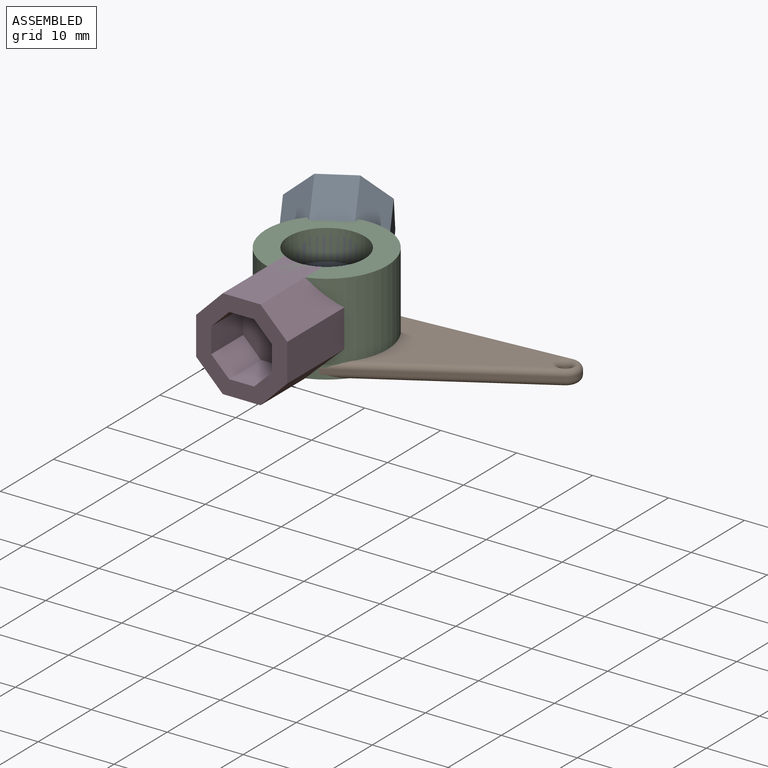
[diagram: assembled view]
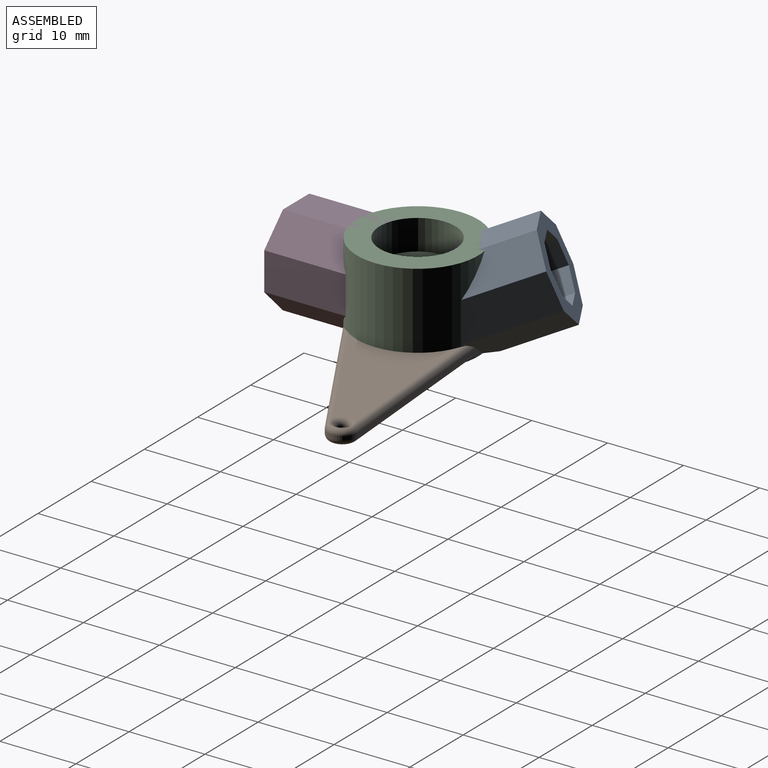
[diagram: assembled view, second angle]
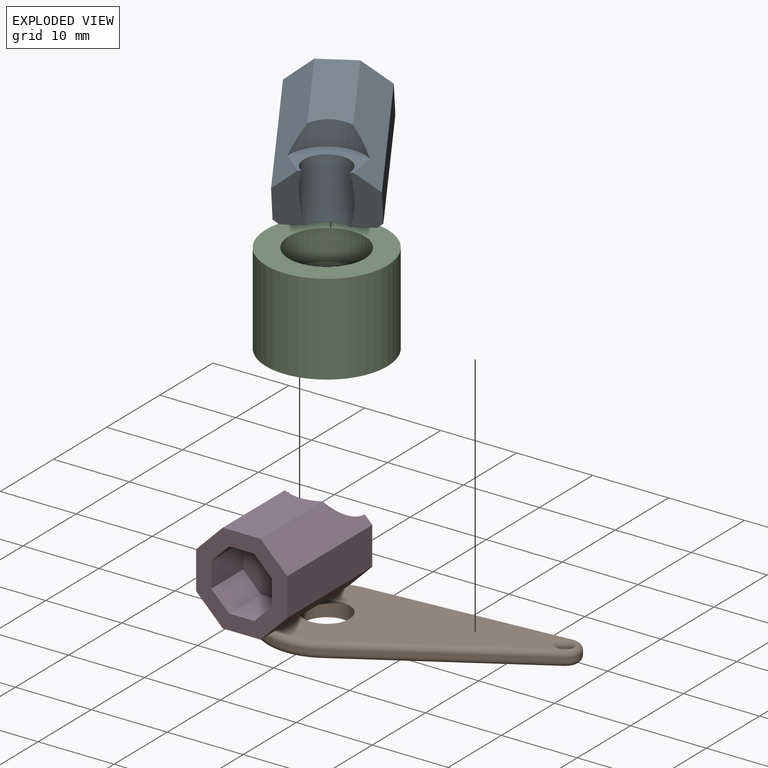
[diagram: exploded view]
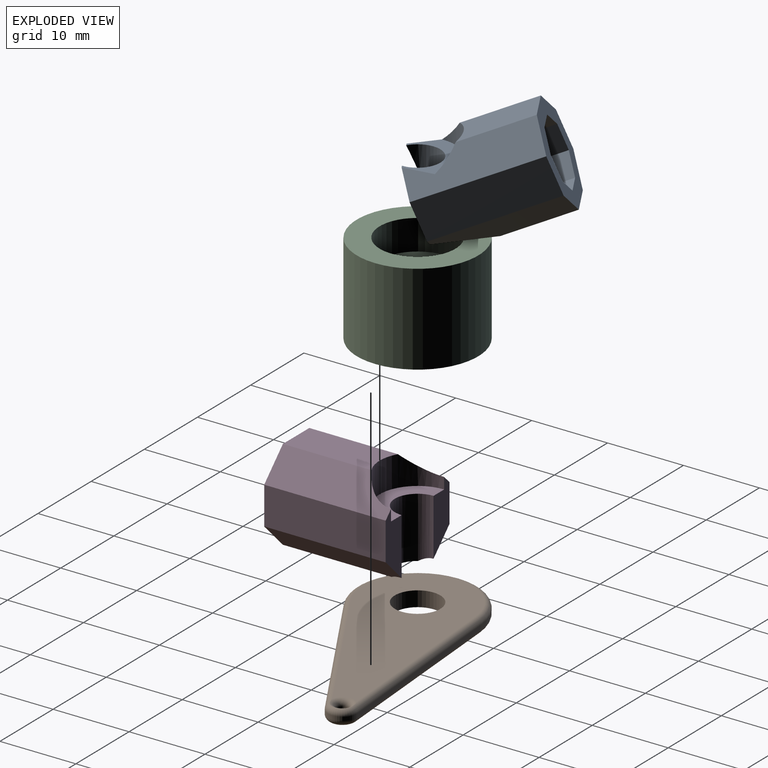
[diagram: exploded view, second angle]
ASSEMBLY  parts=4 mates=3
PART A: 24 faces, bbox 12x19.1x14.6 mm
  f0: plane 8x3.61mm, normal (0,0.93,-0.38), area 22.7mm2, adj f1,f8,f17,f20,f22,f23
  f1: plane 15.93x9.32mm, normal (0.71,0.27,0.65), area 68.5mm2, adj f0,f4,f17,f18,f21,f22
  f2: plane 15.93x9.32mm, normal (-0.71,0.27,0.65), area 68.5mm2, adj f3,f4,f5,f18,f21,f22
  f3: plane 8x3.61mm, normal (0,0.93,-0.38), area 22.7mm2, adj f2,f5,f6,f20,f22,f23
  f4: plane 8.79x4.97mm, normal (0,0.38,0.93), area 44.8mm2, adj f1,f2,f18,f21
  f5: plane 16.69x10.67mm, normal (-1,0,0), area 79.5mm2, adj f2,f3,f6,f18
  f6: plane 16.14x6.74mm, normal (-0.71,-0.27,-0.65), area 66.1mm2, adj f3,f5,f7,f18,f23
  f7: plane 8.5x4.97mm, normal (0,-0.38,-0.93), area 45.6mm2, adj f6,f8,f18,f23
  f8: plane 16.14x6.74mm, normal (0.71,-0.27,-0.65), area 66.1mm2, adj f0,f7,f17,f18,f23
  f9: plane 5.55x3.31mm, normal (0,-0.38,-0.93), area 19.9mm2, adj f10,f16,f18,f19
  f10: plane 6.44x4.44mm, normal (-0.71,-0.27,-0.65), area 19.9mm2, adj f9,f11,f18,f19
  f11: plane 6.81x5.34mm, normal (-1,0,0), area 19.9mm2, adj f10,f12,f18,f19
  f12: plane 6.44x4.44mm, normal (-0.71,0.27,0.65), area 19.9mm2, adj f11,f13,f18,f19
  f13: plane 5.55x3.31mm, normal (0,0.38,0.93), area 19.9mm2, adj f12,f14,f18,f19
  f14: plane 6.44x4.44mm, normal (0.71,0.27,0.65), area 19.9mm2, adj f13,f15,f18,f19
  f15: plane 6.81x5.34mm, normal (1,0,0), area 19.9mm2, adj f14,f16,f18,f19
  f16: plane 6.44x4.44mm, normal (0.71,-0.27,-0.65), area 19.9mm2, adj f9,f15,f18,f19
  f17: plane 16.69x10.67mm, normal (1,0,0), area 79.5mm2, adj f0,f1,f8,f18
  f18: plane 12x11.1mm, normal (0,-0.93,0.38), area 66.3mm2, adj f1,f2,f4,f5,f6,f7,f8,f9
  f19: plane 8x7.4mm, normal (0,-0.93,0.38), area 53mm2, adj f9,f10,f11,f12,f13,f14,f15,f16
  f20: cylinder r=3mm len=8mm, axis (0,0,1), area 72.5mm2, adj f0,f3,f22,f23
  f21: cylinder r=5mm len=8.92mm, axis (0,0,-1), area 24.7mm2, adj f1,f2,f4,f22
  f22: plane 8.92x6.47mm, normal (0,0,1), area 22.8mm2, adj f0,f1,f2,f3,f20,f21
  f23: plane 10.56x7.37mm, normal (0,0,-1), area 53.3mm2, adj f0,f3,f6,f7,f8,f20
PART B: 18 faces, bbox 37.9x17.3x2 mm
  f0: plane 25.62x5.94mm, normal (-0.23,0.97,0), area 13.2mm2, adj f1,f5,f11,f16
  f1: cylinder r=1.9mm len=3.7mm, axis (0,0,1), area 2.6mm2, adj f0,f2,f9,f13
  f2: plane 25.62x5.94mm, normal (-0.23,-0.97,0), area 13.2mm2, adj f1,f5,f10,f15
  f3: cylinder r=0.8mm len=1.6mm, axis (0,0,1), area 2.5mm2, adj f8,f14
  f4: cylinder r=3mm len=6mm, axis (0,0,1), area 37.7mm2, adj f6,f7
  f5: cylinder r=8mm len=16mm, axis (0,0,1), area 14.4mm2, adj f0,f2,f12,f17
  f6: plane 33.5x14.5mm, normal (0,0,-1), area 283.5mm2, adj f4,f14,f15,f16,f17
  f7: plane 33.5x14.5mm, normal (0,0,1), area 283.5mm2, adj f4,f8,f10,f11,f12
  f8: torus R=1.55mm, axis (0,0,1), area 6.9mm2, adj f3,f7,f9,f10,f11
  f9: torus R=1.15mm, axis (0,0,1), area 4.5mm2, adj f1,f8,f10,f11
  f10: cylinder r=0.75mm len=25.79mm, axis (0.97,-0.23,0), area 30.9mm2, adj f2,f7,f8,f9,f12
  f11: cylinder r=0.75mm len=25.79mm, axis (-0.97,-0.23,0), area 30.9mm2, adj f0,f7,f8,f9,f12
  f12: torus R=7.25mm, axis (0,0,1), area 32.7mm2, adj f5,f7,f10,f11
  f13: torus R=1.15mm, axis (0,0,1), area 4.5mm2, adj f1,f14,f15,f16
  f14: torus R=1.55mm, axis (0,0,1), area 6.9mm2, adj f3,f6,f13,f15,f16
  f15: cylinder r=0.75mm len=25.79mm, axis (-0.97,0.23,0), area 30.9mm2, adj f2,f6,f13,f14,f17
  f16: cylinder r=0.75mm len=25.79mm, axis (0.97,0.23,0), area 30.9mm2, adj f0,f6,f13,f14,f17
  f17: torus R=7.25mm, axis (0,0,1), area 32.7mm2, adj f5,f6,f15,f16
PART C: 6 faces, bbox 16x16x12 mm
  f0: cylinder r=3mm len=8mm, axis (0,0,1), area 150.8mm2, adj f3,f5
  f1: cylinder r=8mm len=16mm, axis (0,0,-1), area 603.2mm2, adj f2,f3
  f2: plane 16x16mm, normal (0,0,1), area 122.5mm2, adj f1,f4
  f3: plane 16x16mm, normal (0,0,-1), area 172.8mm2, adj f0,f1
  f4: cylinder r=5mm len=10mm, axis (0,0,-1), area 125.7mm2, adj f2,f5
  f5: plane 10x10mm, normal (0,0,1), area 50.3mm2, adj f0,f4
PART D: 23 faces, bbox 12x16x12 mm
  f0: plane 8.97x3mm, normal (0,1,0), area 18.9mm2, adj f3,f8,f17,f20,f21,f22
  f1: plane 8.97x3mm, normal (0,1,0), area 18.9mm2, adj f4,f5,f6,f20,f21,f22
  f2: plane 11.66x4.97mm, normal (0,0,1), area 55.7mm2, adj f3,f4,f18,f21
  f3: plane 16x3.51mm, normal (0.71,0,0.71), area 68.6mm2, adj f0,f2,f17,f18,f21
  f4: plane 16x3.51mm, normal (-0.71,0,0.71), area 68.6mm2, adj f1,f2,f5,f18,f21
  f5: plane 16x4.97mm, normal (-1,0,0), area 79.5mm2, adj f1,f4,f6,f18
  f6: plane 16x3.51mm, normal (-0.71,0,-0.71), area 78.7mm2, adj f1,f5,f7,f18,f20
  f7: plane 14.32x4.97mm, normal (0,0,-1), area 66.6mm2, adj f6,f8,f18,f20
  f8: plane 16x3.51mm, normal (0.71,0,-0.71), area 78.7mm2, adj f0,f7,f17,f18,f20
  f9: plane 6x3.31mm, normal (0,0,-1), area 19.9mm2, adj f10,f16,f18,f19
  f10: plane 6x2.34mm, normal (-0.71,0,-0.71), area 19.9mm2, adj f9,f11,f18,f19
  f11: plane 6x3.31mm, normal (-1,0,0), area 19.9mm2, adj f10,f12,f18,f19
  f12: plane 6x2.34mm, normal (-0.71,0,0.71), area 19.9mm2, adj f11,f13,f18,f19
  f13: plane 6x3.31mm, normal (0,0,1), area 19.9mm2, adj f12,f14,f18,f19
  f14: plane 6x2.34mm, normal (0.71,0,0.71), area 19.9mm2, adj f13,f15,f18,f19
  f15: plane 6x3.31mm, normal (1,0,0), area 19.9mm2, adj f14,f16,f18,f19
  f16: plane 6x2.34mm, normal (0.71,0,-0.71), area 19.9mm2, adj f9,f15,f18,f19
  f17: plane 16x4.97mm, normal (1,0,0), area 79.5mm2, adj f0,f3,f8,f18
  f18: plane 12x12mm, normal (0,-1,0), area 66.3mm2, adj f2,f3,f4,f5,f6,f7,f8,f9
  f19: plane 8x8mm, normal (0,-1,0), area 53mm2, adj f9,f10,f11,f12,f13,f14,f15,f16
  f20: cylinder r=3mm len=8mm, axis (0,0,1), area 74.2mm2, adj f0,f1,f6,f7,f8,f22
  f21: cylinder r=5mm len=10mm, axis (0,0,-1), area 45.6mm2, adj f0,f1,f2,f3,f4,f22
  f22: plane 10x5mm, normal (0,0,1), area 25.1mm2, adj f0,f1,f20,f21
PLACE A rot(axis=(0,0,-1),150deg) t=(0,0,0)mm
PLACE B rot(axis=(0,0,-1),162.5deg) t=(0,0,0)mm
PLACE C rot(axis=(1,0,0),0deg) t=(0,0,0)mm fixed
PLACE D at identity
MATE revolute C.f1 <-> A.f21  axis (0,0,-1) through (0,0,-6)mm
MATE fastened C.f1 <-> D.f21  axis (0,0,-1) through (0,0,-6)mm
MATE revolute C.f1 <-> B.f5  axis (0,0,-1) through (0,0,-6)mm
